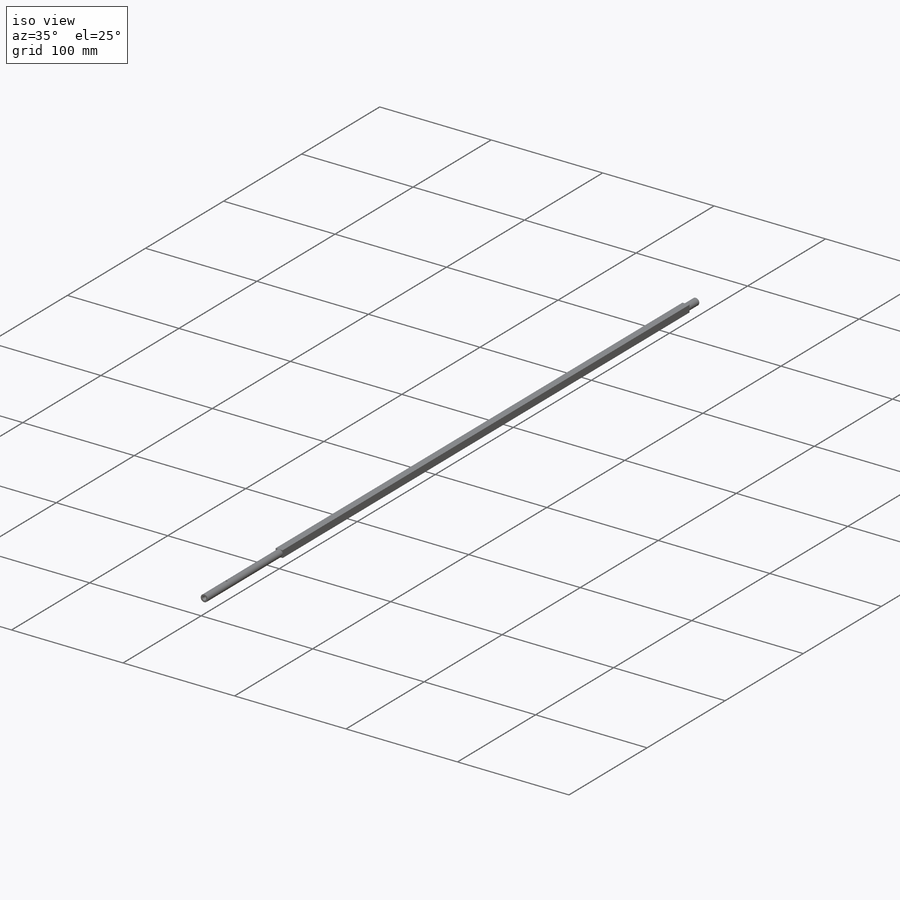
[diagram: iso view]
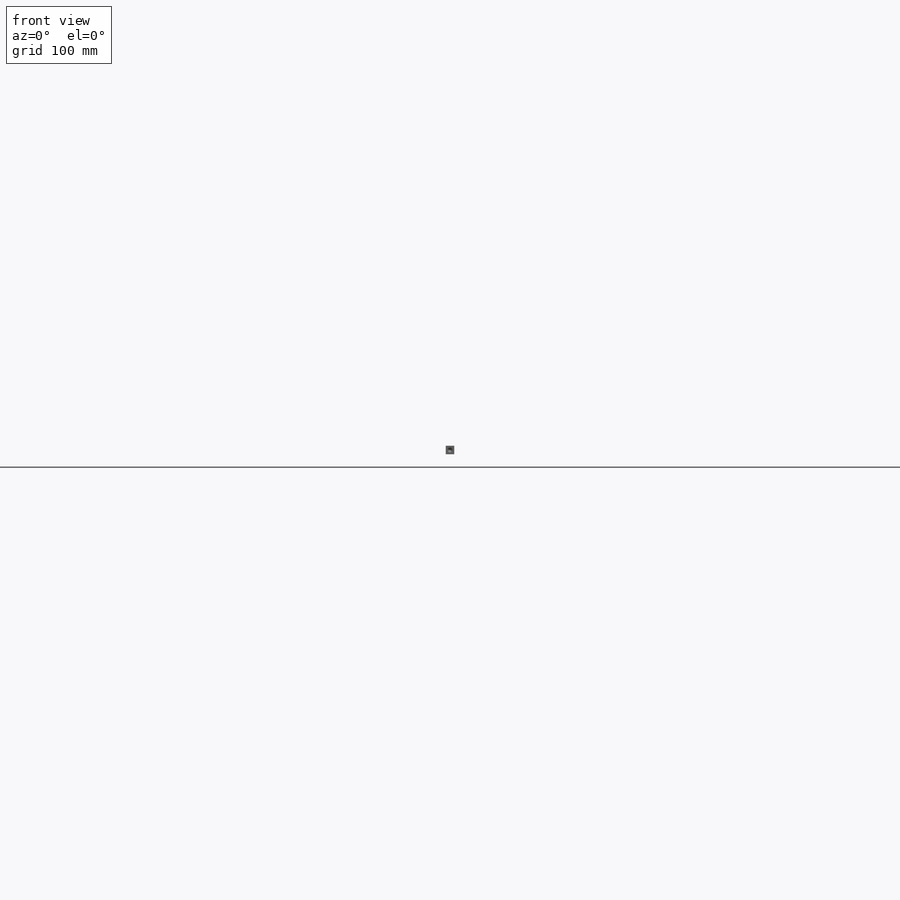
[diagram: front view]
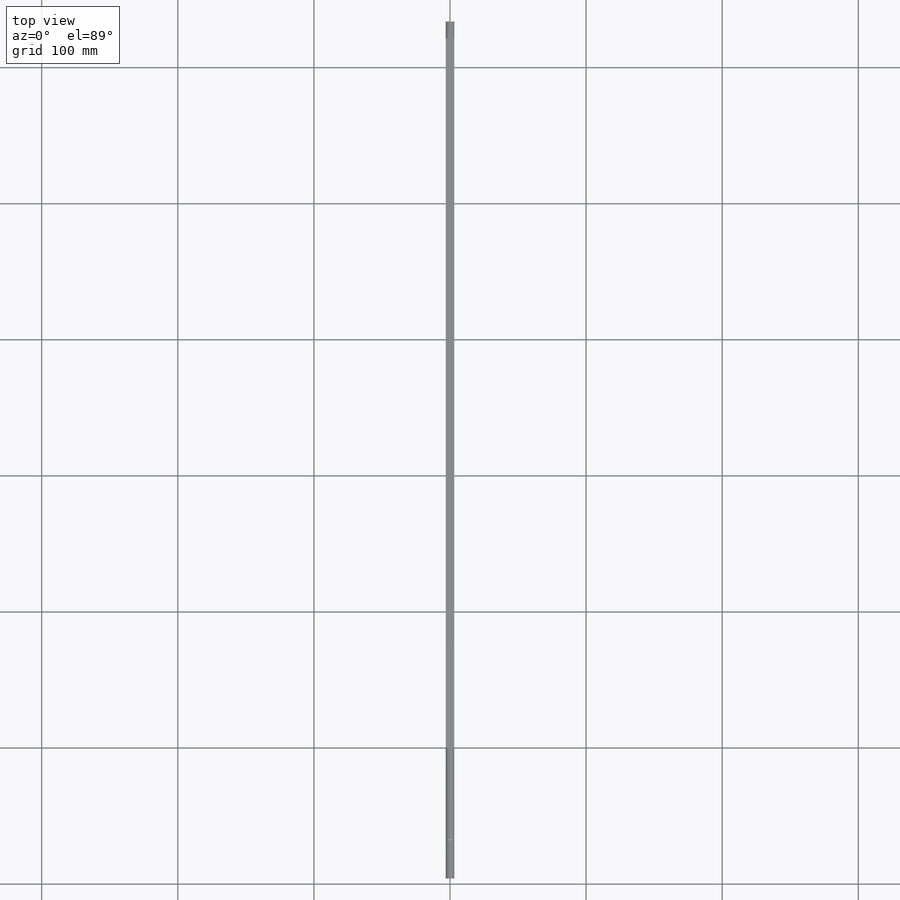
[diagram: top view]
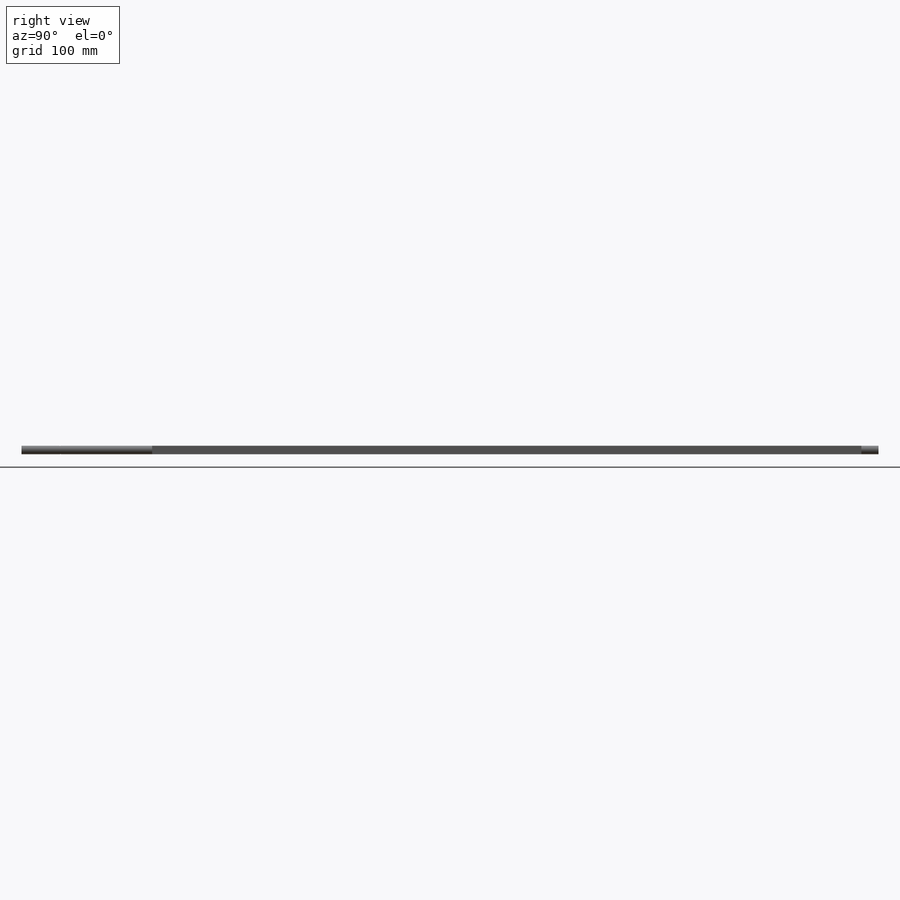
[diagram: right view]
SOLIDWORKS PART (.sldprt)
format: sldprt  version: not decoded by parser v0  size: 163,840 bytes
history: native  units: mm
features: sketch x3, material x1, revolve x1, extrude x1, cut_extrude x1 (+16 scaffold rows collapsed)
feature tree (23):
  scaffold x16  (default folders/planes/origin — collapsed)
  material  "1060 Alloy"
  sketch  "Sketch1"  dims[c1.D1=600.0mm c1.D2=597.2mm c2.D1=6.31mm c2.D3=~15.627695mm c3.D1=6.31mm c3.D2=5.0mm c3.D3=3.61mm c3.D4=597.2mm c4.D2=5.0mm c4.D5=96.02mm c4.D6=5.0mm c4.D4=533.7mm]
  revolve  "Revolve1"  Angle=360deg
  sketch  "Sketch5"  dims[D1=12.56mm D2=6.32mm]
  extrude  "Boss-Extrude2"  Depth=3.16mm
  sketch  "Sketch4"  dims[D2=1.55mm D1=27.75mm]
  cut_extrude  "Cut-Extrude1"  [1 undecoded]
decode coverage: 5 of 6 modeling features carry decoded parameters
note: ~ marks probable driven/reference dimensions
note: 1 parameter value undecoded
note: suppression state not decoded; provenance and decode notes live in map.json
